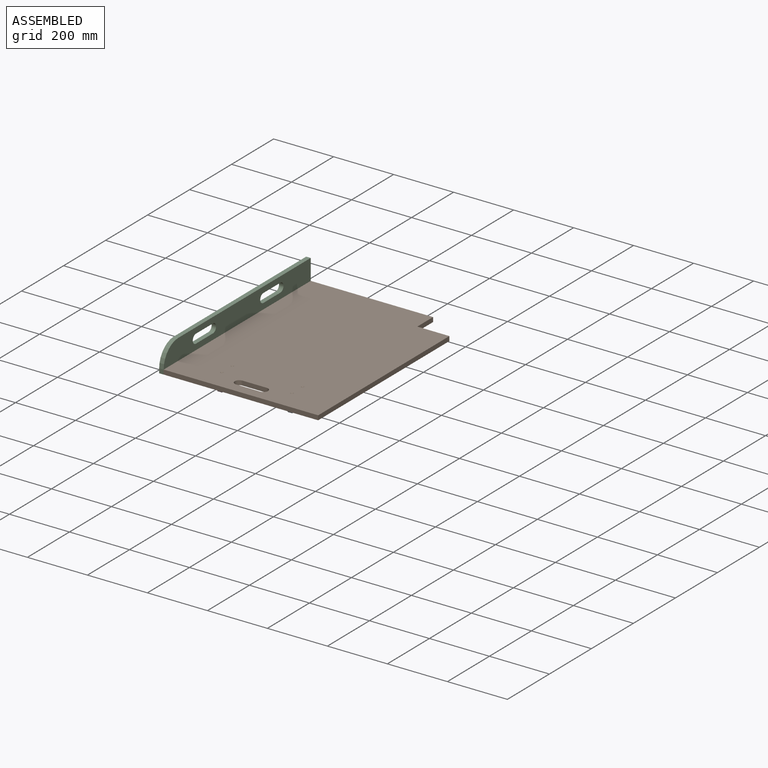
[diagram: assembled view]
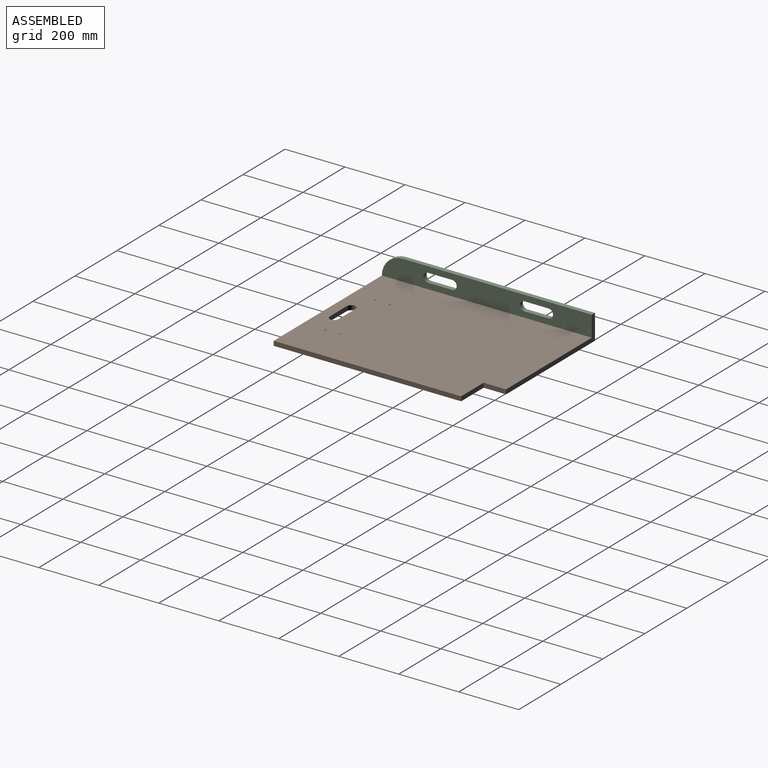
[diagram: assembled view, second angle]
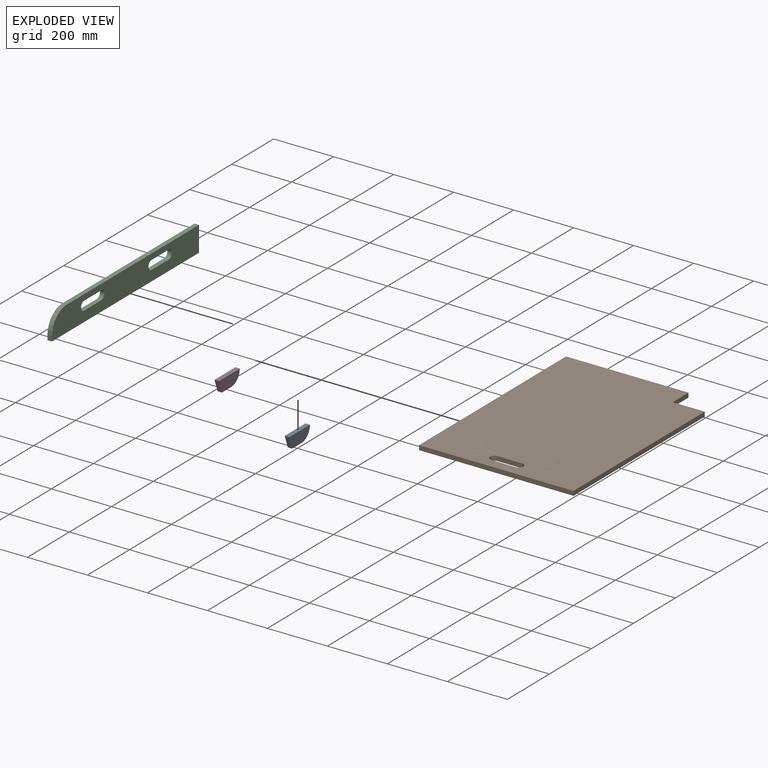
[diagram: exploded view]
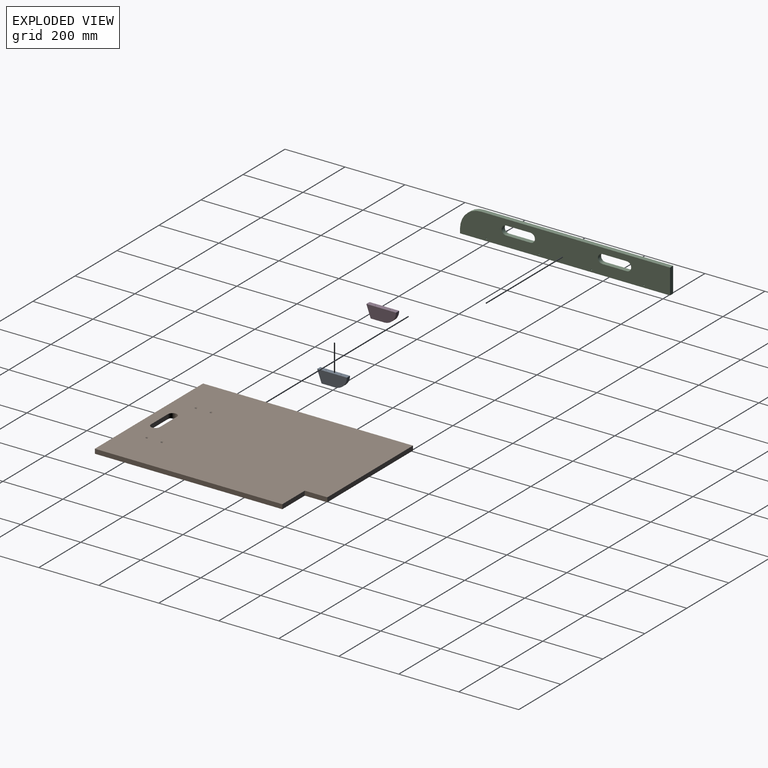
[diagram: exploded view, second angle]
ASSEMBLY  parts=4 mates=3
PART A: 10 faces, bbox 15x99x40 mm
  f0: plane 44.44x15mm, normal (0,0,-1), area 666.6mm2, adj f1,f2,f4,f5
  f1: plane 99x40mm, normal (-1,0,0), area 3325.5mm2, adj f0,f3,f4,f5
  f2: plane 99x40mm, normal (1,0,0), area 3325.5mm2, adj f0,f3,f4,f5
  f3: plane 99x15mm, normal (0,0,1), area 1478.7mm2, adj f1,f2,f4,f5,f6,f8
  f4: plane 40x15mm, normal (0,-0.94,-0.34), area 638.5mm2, adj f0,f1,f2,f3
  f5: cylinder r=40mm len=40mm, axis (-1,0,0), area 942.5mm2, adj f0,f1,f2,f3
  f6: cylinder r=1mm len=25mm, axis (0,0,1), area 157.1mm2, adj f3,f7
  f7: cone r=0mm half-angle=59deg, axis (0,0,1), area 3.7mm2, adj f6
  f8: cylinder r=1mm len=25mm, axis (0,0,1), area 157.1mm2, adj f3,f9
  f9: cone r=0mm half-angle=59deg, axis (0,0,1), area 3.7mm2, adj f8
PART B: 28 faces, bbox 515x700x15 mm
  f0: plane 700x515mm, normal (0,0,1), area 349024mm2, adj f2,f3,f4,f5,f6,f7,f8,f9
  f1: plane 700x515mm, normal (0,0,-1), area 349287.9mm2, adj f2,f3,f4,f5,f6,f7,f8,f9
  f2: plane 625x15mm, normal (1,0,0), area 9375mm2, adj f0,f1,f4,f7
  f3: plane 700x15mm, normal (-1,0,0), area 10487.4mm2, adj f0,f1,f4,f5,f12,f14,f16,f18
  f4: plane 515x15mm, normal (0,-1,0), area 7725mm2, adj f0,f1,f2,f3
  f5: plane 408x15mm, normal (0,1,0), area 6120mm2, adj f0,f1,f3,f6
  f6: plane 75x15mm, normal (1,0,0), area 1125mm2, adj f0,f1,f5,f7
  f7: plane 107x15mm, normal (0,1,0), area 1605mm2, adj f0,f1,f2,f6
  f8: plane 81x15mm, normal (0,1,0), area 1215mm2, adj f0,f1,f9,f11
  f9: cylinder r=15mm len=30mm, axis (0,0,1), area 706.9mm2, adj f0,f1,f8,f10
  f10: plane 81x15mm, normal (0,-1,0), area 1215mm2, adj f0,f1,f9,f11
  f11: cylinder r=15mm len=30mm, axis (0,0,1), area 706.9mm2, adj f0,f1,f8,f10
  f12: cylinder r=1mm len=25mm, axis (-1,0,0), area 157.1mm2, adj f3,f13
  f13: cone r=0mm half-angle=59deg, axis (-1,0,0), area 3.7mm2, adj f12
  f14: cylinder r=1mm len=25mm, axis (-1,0,0), area 157.1mm2, adj f3,f15
  f15: cone r=0mm half-angle=59deg, axis (-1,0,0), area 3.7mm2, adj f14
  f16: cylinder r=1mm len=25mm, axis (-1,0,0), area 157.1mm2, adj f3,f17
  f17: cone r=0mm half-angle=59deg, axis (-1,0,0), area 3.7mm2, adj f16
  f18: cylinder r=1mm len=25mm, axis (-1,0,0), area 157.1mm2, adj f3,f19
  f19: cone r=0mm half-angle=59deg, axis (-1,0,0), area 3.7mm2, adj f18
  f20: cylinder r=2mm len=12mm, axis (0,0,1), area 150.8mm2, adj f1,f21
  f21: cone r=2mm half-angle=45deg, axis (0,0,1), area 93.3mm2, adj f0,f20
  f22: cylinder r=2mm len=12mm, axis (0,0,1), area 150.8mm2, adj f1,f23
  f23: cone r=2mm half-angle=45deg, axis (0,0,1), area 93.3mm2, adj f0,f22
  f24: cylinder r=2mm len=12mm, axis (0,0,1), area 150.8mm2, adj f1,f25
  f25: cone r=2mm half-angle=45deg, axis (0,0,1), area 93.3mm2, adj f0,f24
  f26: cylinder r=2mm len=12mm, axis (0,0,1), area 150.8mm2, adj f1,f27
  f27: cone r=2mm half-angle=45deg, axis (0,0,1), area 93.3mm2, adj f0,f26
PART C: 23 faces, bbox 15x700x84 mm
  f0: plane 700x84mm, normal (1,0,0), area 51454.3mm2, adj f2,f3,f4,f5,f6,f7,f9,f11
  f1: plane 700x84mm, normal (-1,0,0), area 51190.4mm2, adj f2,f3,f4,f5,f6,f8,f10,f12
  f2: plane 15x15mm, normal (0,-1,0), area 225mm2, adj f0,f1,f5,f6
  f3: plane 84x15mm, normal (0,1,0), area 1260mm2, adj f0,f1,f4,f5
  f4: plane 631x15mm, normal (0,0,1), area 9465mm2, adj f0,f1,f3,f6
  f5: plane 700x15mm, normal (0,0,-1), area 10500mm2, adj f0,f1,f2,f3
  f6: cylinder r=69mm len=69mm, axis (-1,0,0), area 1625.8mm2, adj f0,f1,f2,f4
  f7: cylinder r=2mm len=12mm, axis (-1,0,0), area 150.8mm2, adj f0,f8
  f8: cone r=2mm half-angle=45deg, axis (-1,0,0), area 93.3mm2, adj f1,f7
  f9: cylinder r=2mm len=12mm, axis (-1,0,0), area 150.8mm2, adj f0,f10
  f10: cone r=2mm half-angle=45deg, axis (-1,0,0), area 93.3mm2, adj f1,f9
  f11: cylinder r=2mm len=12mm, axis (-1,0,0), area 150.8mm2, adj f0,f12
  f12: cone r=2mm half-angle=45deg, axis (-1,0,0), area 93.3mm2, adj f1,f11
  f13: cylinder r=2mm len=12mm, axis (-1,0,0), area 150.8mm2, adj f0,f14
  f14: cone r=2mm half-angle=45deg, axis (-1,0,0), area 93.3mm2, adj f1,f13
  f15: cylinder r=15mm len=30mm, axis (1,0,0), area 706.9mm2, adj f0,f1,f16,f18
  f16: plane 81x15mm, normal (0,0,1), area 1215mm2, adj f0,f1,f15,f17
  f17: cylinder r=15mm len=30mm, axis (1,0,0), area 706.9mm2, adj f0,f1,f16,f18
  f18: plane 81x15mm, normal (0,0,-1), area 1215mm2, adj f0,f1,f15,f17
  f19: plane 81x15mm, normal (0,0,1), area 1215mm2, adj f0,f1,f20,f21
  f20: cylinder r=15mm len=30mm, axis (1,0,0), area 706.9mm2, adj f0,f1,f19,f22
  f21: cylinder r=15mm len=30mm, axis (1,0,0), area 706.9mm2, adj f0,f1,f19,f22
  f22: plane 81x15mm, normal (0,0,-1), area 1215mm2, adj f0,f1,f20,f21
PART D: same geometry as A
PLACE A t=(58.04,0,0)mm
PLACE B t=(-176,0,0)mm
PLACE C t=(-176,0,0)mm
PLACE D t=(-176,0,0)mm
MATE fastened D.f6 <-> B.f20  axis (0,0,1) through (-35.52,-573.52,0)mm
MATE fastened B.f12 <-> C.f13  axis (-1,0,0) through (-176,-612.5,7.5)mm
MATE fastened A.f6 <-> B.f24  axis (0,0,1) through (198.52,-573.52,0)mm
